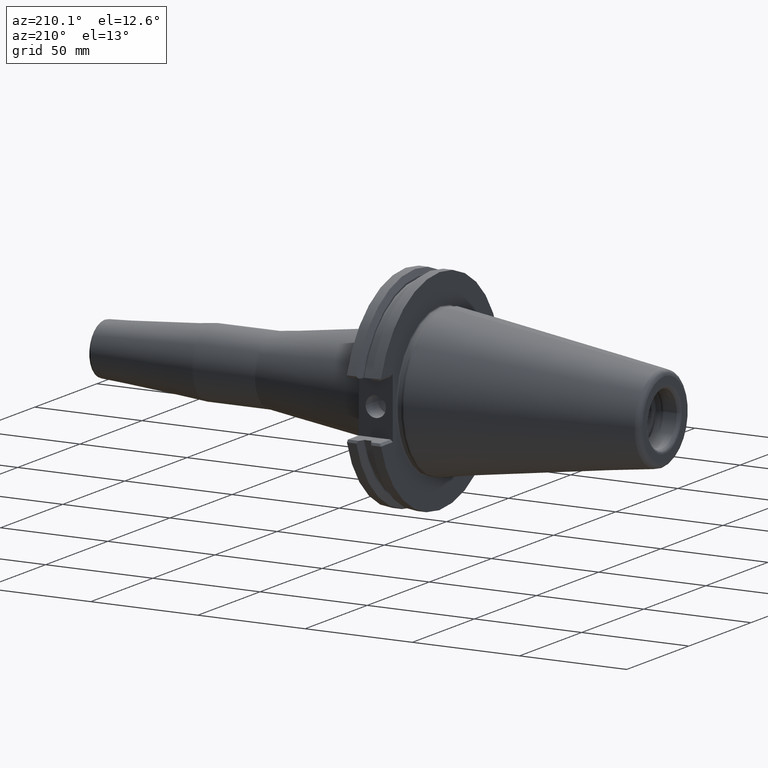
[diagram: clean part render]
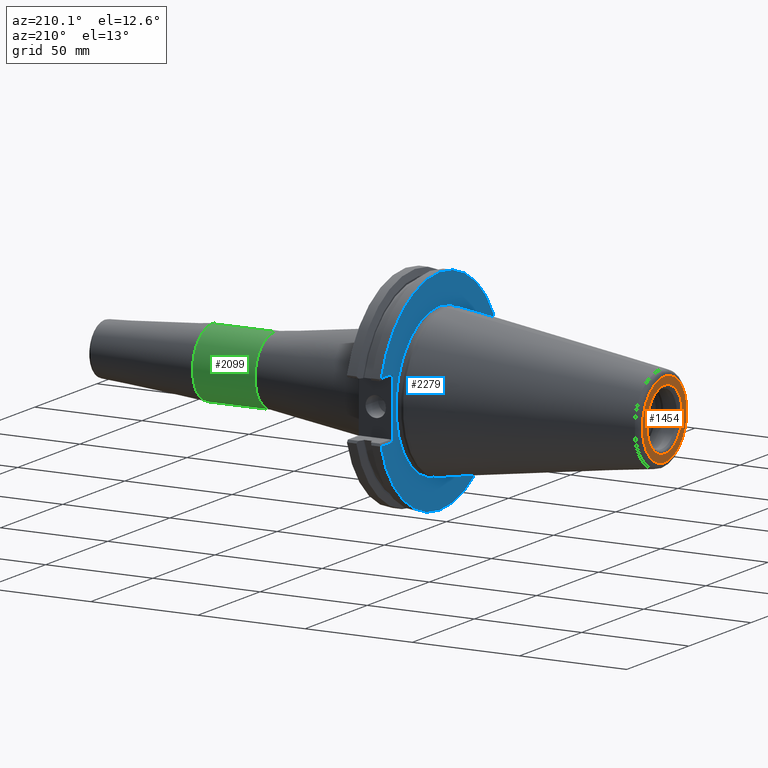
[diagram: same view with three faces highlighted in distinct colors, each labeled with its STEP entity id]
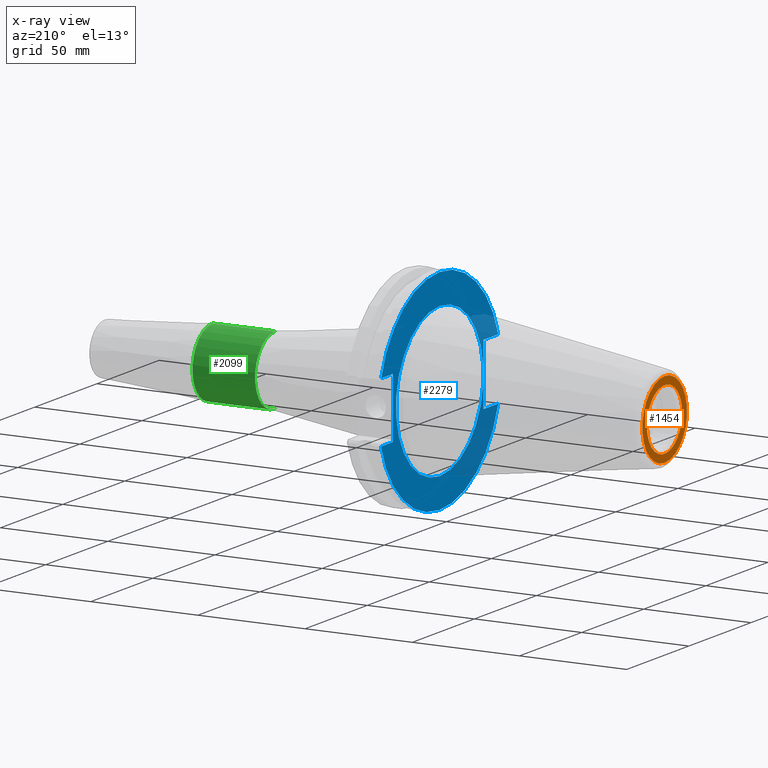
[diagram: x-ray of the same camera — body ghosted, the three highlighted faces saturated]
A machine part, auxiliary view with three faces highlighted in distinct colors.
The next image is the same camera in x-ray (body ghosted, the three faces saturated) — at least one of them is partly hidden behind the body in this view.
Their STEP definitions:

[orange] entity #1454 — the highlighted planar face has unit normal (1, 0, 0).
#43=CARTESIAN_POINT('',(-1.0175E2,0.E0,0.E0));
#44=DIRECTION('',(1.E0,0.E0,0.E0));
#45=DIRECTION('',(0.E0,1.E0,-6.933558693367E-8));
#46=AXIS2_PLACEMENT_3D('',#43,#44,#45);
#48=CARTESIAN_POINT('',(-1.0175E2,0.E0,1.921115422219E-14));
#49=DIRECTION('',(1.E0,0.E0,0.E0));
#50=DIRECTION('',(0.E0,-1.E0,6.933558655561E-8));
#51=AXIS2_PLACEMENT_3D('',#48,#49,#50);
#53=CARTESIAN_POINT('',(-1.0175E2,0.E0,0.E0));
#54=DIRECTION('',(-1.E0,0.E0,0.E0));
#55=DIRECTION('',(0.E0,0.E0,-1.E0));
#56=AXIS2_PLACEMENT_3D('',#53,#54,#55);
#58=CARTESIAN_POINT('',(-1.0175E2,0.E0,0.E0));
#59=DIRECTION('',(-1.E0,0.E0,0.E0));
#60=DIRECTION('',(0.E0,0.E0,1.E0));
#61=AXIS2_PLACEMENT_3D('',#58,#59,#60);
#1131=CARTESIAN_POINT('',(-1.0175E2,1.423205080757E1,-9.867875960127E-7));
#1132=CARTESIAN_POINT('',(-1.0175E2,-1.423205080757E1,9.867876103962E-7));
#1133=VERTEX_POINT('',#1131);
#1134=VERTEX_POINT('',#1132);
#1139=CARTESIAN_POINT('',(-1.0175E2,0.E0,-1.792459727235E1));
#1140=CARTESIAN_POINT('',(-1.0175E2,0.E0,1.792459727235E1));
#1141=VERTEX_POINT('',#1139);
#1142=VERTEX_POINT('',#1140);
#1438=CARTESIAN_POINT('',(-1.0175E2,0.E0,0.E0));
#1439=DIRECTION('',(1.E0,0.E0,0.E0));
#1440=DIRECTION('',(0.E0,0.E0,1.E0));
#1441=AXIS2_PLACEMENT_3D('',#1438,#1439,#1440);
#1442=PLANE('',#1441);
#1443=ORIENTED_EDGE('',*,*,#1428,.F.);
#1445=ORIENTED_EDGE('',*,*,#1444,.F.);
#1446=EDGE_LOOP('',(#1443,#1445));
#1447=FACE_OUTER_BOUND('',#1446,.F.);
#1449=ORIENTED_EDGE('',*,*,#1448,.F.);
#1451=ORIENTED_EDGE('',*,*,#1450,.F.);
#1452=EDGE_LOOP('',(#1449,#1451));
#1453=FACE_BOUND('',#1452,.F.);
#1454=ADVANCED_FACE('',(#1447,#1453),#1442,.F.);
#47=CIRCLE('',#46,1.423205080757E1);
#52=CIRCLE('',#51,1.423205080757E1);
#57=CIRCLE('',#56,1.792459727235E1);
#62=CIRCLE('',#61,1.792459727235E1);
#1428=EDGE_CURVE('',#1141,#1142,#57,.T.);
#1444=EDGE_CURVE('',#1142,#1141,#62,.T.);
#1448=EDGE_CURVE('',#1133,#1134,#47,.T.);
#1450=EDGE_CURVE('',#1134,#1133,#52,.T.);

[blue] entity #2279 — the highlighted planar face has unit normal (1, 0, 0).
#583=CARTESIAN_POINT('',(3.15E0,0.E0,0.E0));
#584=DIRECTION('',(1.E0,0.E0,0.E0));
#585=DIRECTION('',(0.E0,0.E0,1.E0));
#586=AXIS2_PLACEMENT_3D('',#583,#584,#585);
#588=CARTESIAN_POINT('',(3.15E0,0.E0,0.E0));
#589=DIRECTION('',(1.E0,0.E0,0.E0));
#590=DIRECTION('',(0.E0,0.E0,-1.E0));
#591=AXIS2_PLACEMENT_3D('',#588,#589,#590);
#593=DIRECTION('',(0.E0,1.E0,0.E0));
#594=VECTOR('',#593,9.477745407877E0);
#595=CARTESIAN_POINT('',(3.15E0,3.7719E1,-1.385E1));
#596=LINE('',#595,#594);
#597=DIRECTION('',(0.E0,-1.E0,0.E0));
#598=VECTOR('',#597,9.354853212266E0);
#599=CARTESIAN_POINT('',(3.15E0,4.707385321227E1,1.435E1));
#600=LINE('',#599,#598);
#601=DIRECTION('',(0.E0,-1.E0,0.E0));
#602=VECTOR('',#601,1.176785321227E1);
#603=CARTESIAN_POINT('',(3.15E0,-3.5306E1,1.435E1));
#604=LINE('',#603,#602);
#605=DIRECTION('',(0.E0,1.E0,0.E0));
#606=VECTOR('',#605,1.176785321227E1);
#607=CARTESIAN_POINT('',(3.15E0,-4.707385321227E1,-1.435E1));
#608=LINE('',#607,#606);
#609=DIRECTION('',(1.390924008965E-14,5.991861250008E-1,-8.006097598747E-1));
#610=VECTOR('',#609,3.192763997083E-2);
#611=CARTESIAN_POINT('',(3.15E0,4.719674540788E1,-1.385E1));
#612=LINE('',#611,#610);
#655=DIRECTION('',(0.E0,0.E0,-1.E0));
#656=VECTOR('',#655,2.82E1);
#657=CARTESIAN_POINT('',(3.15E0,3.7719E1,1.435E1));
#658=LINE('',#657,#656);
#809=CARTESIAN_POINT('',(3.15E0,0.E0,0.E0));
#810=DIRECTION('',(-1.E0,0.E0,0.E0));
#811=DIRECTION('',(0.E0,-9.565426103585E-1,2.915925831852E-1));
#812=AXIS2_PLACEMENT_3D('',#809,#810,#811);
#827=CARTESIAN_POINT('',(3.15E0,0.E0,0.E0));
#828=DIRECTION('',(-1.E0,0.E0,0.E0));
#829=DIRECTION('',(0.E0,9.594285193142E-1,-2.819519752130E-1));
#830=AXIS2_PLACEMENT_3D('',#827,#828,#829);
#936=DIRECTION('',(0.E0,0.E0,1.E0));
#937=VECTOR('',#936,2.87E1);
#938=CARTESIAN_POINT('',(3.15E0,-3.5306E1,-1.435E1));
#939=LINE('',#938,#937);
#1087=CARTESIAN_POINT('',(3.15E0,4.721587600675E1,-1.387556158017E1));
#1089=VERTEX_POINT('',#1087);
#1159=CARTESIAN_POINT('',(3.15E0,0.E0,3.5225E1));
#1160=CARTESIAN_POINT('',(3.15E0,0.E0,-3.5225E1));
#1161=VERTEX_POINT('',#1159);
#1162=VERTEX_POINT('',#1160);
#1187=CARTESIAN_POINT('',(3.15E0,3.7719E1,-1.385E1));
#1188=CARTESIAN_POINT('',(3.15E0,4.719674540788E1,-1.385E1));
#1189=VERTEX_POINT('',#1187);
#1190=VERTEX_POINT('',#1188);
#1201=CARTESIAN_POINT('',(3.15E0,4.707385321227E1,1.435E1));
#1202=CARTESIAN_POINT('',(3.15E0,3.7719E1,1.435E1));
#1203=VERTEX_POINT('',#1201);
#1204=VERTEX_POINT('',#1202);
#1211=CARTESIAN_POINT('',(3.15E0,-4.707385321227E1,-1.435E1));
#1212=CARTESIAN_POINT('',(3.15E0,-3.5306E1,-1.435E1));
#1213=VERTEX_POINT('',#1211);
#1214=VERTEX_POINT('',#1212);
#1221=CARTESIAN_POINT('',(3.15E0,-3.5306E1,1.435E1));
#1222=CARTESIAN_POINT('',(3.15E0,-4.707385321227E1,1.435E1));
#1223=VERTEX_POINT('',#1221);
#1224=VERTEX_POINT('',#1222);
#2249=CARTESIAN_POINT('',(3.15E0,0.E0,0.E0));
#2250=DIRECTION('',(1.E0,0.E0,0.E0));
#2251=DIRECTION('',(0.E0,0.E0,1.E0));
#2252=AXIS2_PLACEMENT_3D('',#2249,#2250,#2251);
#2253=PLANE('',#2252);
#2254=ORIENTED_EDGE('',*,*,#2239,.F.);
#2256=ORIENTED_EDGE('',*,*,#2255,.F.);
#2258=ORIENTED_EDGE('',*,*,#2257,.F.);
#2260=ORIENTED_EDGE('',*,*,#2259,.F.);
#2262=ORIENTED_EDGE('',*,*,#2261,.F.);
#2264=ORIENTED_EDGE('',*,*,#2263,.F.);
#2266=ORIENTED_EDGE('',*,*,#2265,.F.);
#2268=ORIENTED_EDGE('',*,*,#2267,.F.);
#2270=ORIENTED_EDGE('',*,*,#2269,.F.);
#2271=EDGE_LOOP('',(#2254,#2256,#2258,#2260,#2262,#2264,#2266,#2268,#2270));
#2272=FACE_OUTER_BOUND('',#2271,.F.);
#2274=ORIENTED_EDGE('',*,*,#2273,.F.);
#2276=ORIENTED_EDGE('',*,*,#2275,.F.);
#2277=EDGE_LOOP('',(#2274,#2276));
#2278=FACE_BOUND('',#2277,.F.);
#2279=ADVANCED_FACE('',(#2272,#2278),#2253,.F.);
#587=CIRCLE('',#586,3.5225E1);
#592=CIRCLE('',#591,3.5225E1);
#813=CIRCLE('',#812,4.92125E1);
#831=CIRCLE('',#830,4.92125E1);
#2239=EDGE_CURVE('',#1189,#1190,#596,.T.);
#2255=EDGE_CURVE('',#1204,#1189,#658,.T.);
#2257=EDGE_CURVE('',#1203,#1204,#600,.T.);
#2259=EDGE_CURVE('',#1224,#1203,#813,.T.);
#2261=EDGE_CURVE('',#1223,#1224,#604,.T.);
#2263=EDGE_CURVE('',#1214,#1223,#939,.T.);
#2265=EDGE_CURVE('',#1213,#1214,#608,.T.);
#2267=EDGE_CURVE('',#1089,#1213,#831,.T.);
#2269=EDGE_CURVE('',#1190,#1089,#612,.T.);
#2273=EDGE_CURVE('',#1161,#1162,#587,.T.);
#2275=EDGE_CURVE('',#1162,#1161,#592,.T.);

[green] entity #2099 — the highlighted cylindrical surface (partial cylindrical patch) has radius 16 mm, axis along (1, 0, 0).
#476=CARTESIAN_POINT('',(1.091751810553E2,0.E0,0.E0));
#477=DIRECTION('',(1.E0,0.E0,0.E0));
#478=DIRECTION('',(0.E0,0.E0,-1.E0));
#479=AXIS2_PLACEMENT_3D('',#476,#477,#478);
#481=DIRECTION('',(-1.E0,0.E0,0.E0));
#482=VECTOR('',#481,2.917518105530E1);
#483=CARTESIAN_POINT('',(1.091751810553E2,0.E0,-1.6E1));
#484=LINE('',#483,#482);
#485=DIRECTION('',(-1.E0,0.E0,0.E0));
#486=VECTOR('',#485,2.917518105530E1);
#487=CARTESIAN_POINT('',(1.091751810553E2,0.E0,1.6E1));
#488=LINE('',#487,#486);
#507=CARTESIAN_POINT('',(8.E1,0.E0,0.E0));
#508=DIRECTION('',(1.E0,0.E0,0.E0));
#509=DIRECTION('',(0.E0,0.E0,-1.E0));
#510=AXIS2_PLACEMENT_3D('',#507,#508,#509);
#1317=CARTESIAN_POINT('',(1.091751810553E2,0.E0,-1.6E1));
#1318=VERTEX_POINT('',#1317);
#1319=CARTESIAN_POINT('',(8.E1,0.E0,-1.6E1));
#1320=VERTEX_POINT('',#1319);
#1347=CARTESIAN_POINT('',(1.091751810553E2,0.E0,1.6E1));
#1348=VERTEX_POINT('',#1347);
#1349=CARTESIAN_POINT('',(8.E1,0.E0,1.6E1));
#1350=VERTEX_POINT('',#1349);
#2085=CARTESIAN_POINT('',(1.20025E1,0.E0,0.E0));
#2086=DIRECTION('',(1.E0,0.E0,0.E0));
#2087=DIRECTION('',(0.E0,0.E0,1.E0));
#2088=AXIS2_PLACEMENT_3D('',#2085,#2086,#2087);
#2089=CYLINDRICAL_SURFACE('',#2088,1.6E1);
#2091=ORIENTED_EDGE('',*,*,#2090,.F.);
#2092=ORIENTED_EDGE('',*,*,#2080,.T.);
#2094=ORIENTED_EDGE('',*,*,#2093,.T.);
#2096=ORIENTED_EDGE('',*,*,#2095,.F.);
#2097=EDGE_LOOP('',(#2091,#2092,#2094,#2096));
#2098=FACE_OUTER_BOUND('',#2097,.F.);
#2099=ADVANCED_FACE('',(#2098),#2089,.T.);
#480=CIRCLE('',#479,1.6E1);
#511=CIRCLE('',#510,1.6E1);
#2080=EDGE_CURVE('',#1318,#1348,#480,.T.);
#2090=EDGE_CURVE('',#1318,#1320,#484,.T.);
#2093=EDGE_CURVE('',#1348,#1350,#488,.T.);
#2095=EDGE_CURVE('',#1320,#1350,#511,.T.);